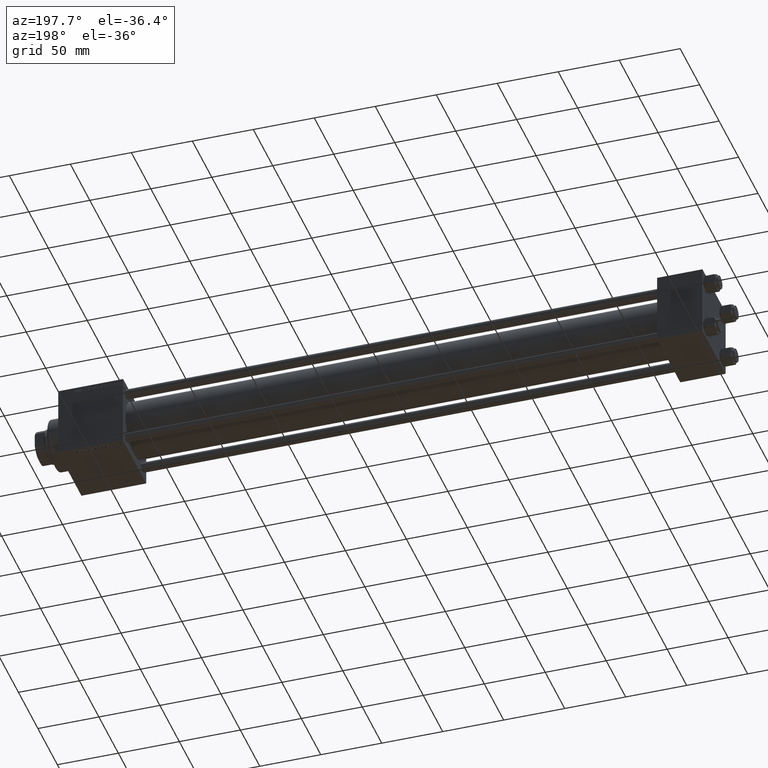
[diagram: clean part render]
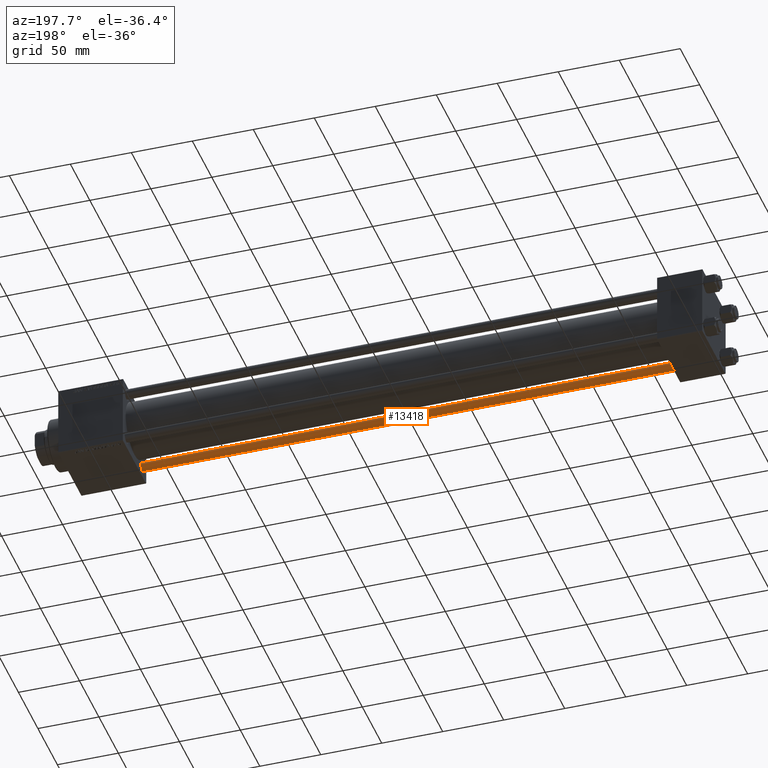
[diagram: same view with one face highlighted and labeled with its STEP entity id]
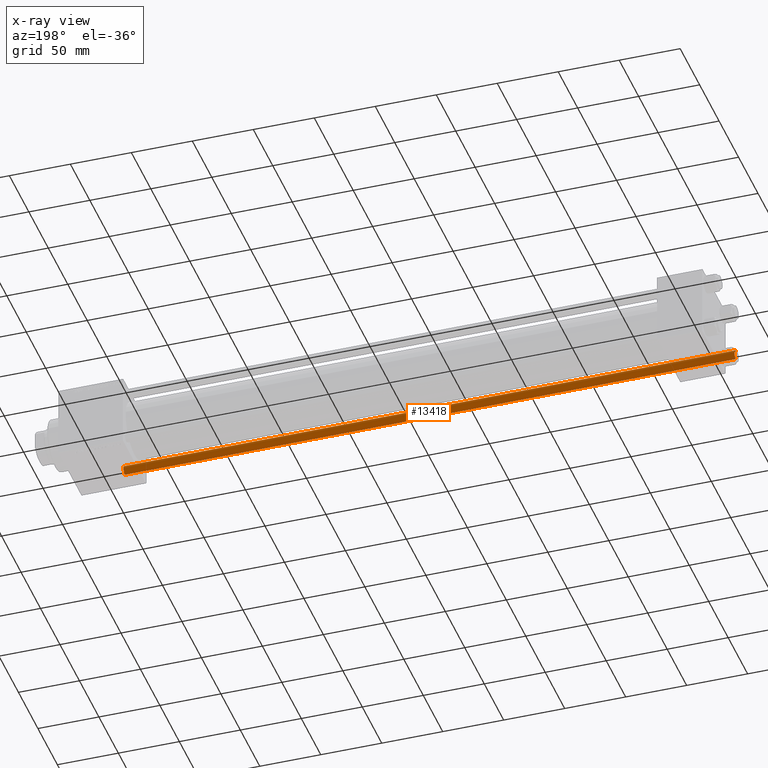
[diagram: x-ray of the same camera — body ghosted, the highlighted face saturated]
A machine part, auxiliary view. The second image highlights one B-rep face of the part: STEP entity #13418.
The next image is the same camera in x-ray: the body ghosted, the highlighted face saturated — about 0% of this face is hidden behind the body in this view.
In plain terms, the highlighted cylindrical surface (edge-blend (fillet) strip) has radius 4 mm, axis along (-1, -0, -0).
Its self-contained STEP definition (entity closure, byte-faithful):
#370 = CARTESIAN_POINT ( 'NONE',  ( 0.000000000000000000, 0.000000000000000000, 502.0000000000000000 ) ) ;
#5263 = FACE_OUTER_BOUND ( 'NONE', #20723, .T. ) ;
#6617 = AXIS2_PLACEMENT_3D ( 'NONE', #49470, #21684, #29738 ) ;
#7139 = ORIENTED_EDGE ( 'NONE', *, *, #8593, .F. ) ;
#7296 = CARTESIAN_POINT ( 'NONE',  ( -4.000000000000000000, 0.000000000000000000, 502.0000000000000000 ) ) ;
#8593 = EDGE_CURVE ( 'NONE', #11982, #50220, #14528, .T. ) ;
#10145 = AXIS2_PLACEMENT_3D ( 'NONE', #21132, #28667, #44508 ) ;
#11804 = CIRCLE ( 'NONE', #10145, 4.000000000000000000 ) ;
#11982 = VERTEX_POINT ( 'NONE', #43238 ) ;
#13418 = ADVANCED_FACE ( 'NONE', ( #5263 ), #36474, .T. ) ;
#14528 = LINE ( 'NONE', #26720, #45186 ) ;
#14945 = CIRCLE ( 'NONE', #6617, 4.000000000000000000 ) ;
#17134 = ORIENTED_EDGE ( 'NONE', *, *, #45180, .T. ) ;
#20385 = DIRECTION ( 'NONE',  ( -1.000000000000000000, 0.000000000000000000, 0.000000000000000000 ) ) ;
#20723 = EDGE_LOOP ( 'NONE', ( #7139, #49556, #17134, #31884 ) ) ;
#21132 = CARTESIAN_POINT ( 'NONE',  ( 0.000000000000000000, 0.000000000000000000, 501.4999999999999432 ) ) ;
#21684 = DIRECTION ( 'NONE',  ( -0.000000000000000000, -0.000000000000000000, 1.000000000000000000 ) ) ;
#22843 = CARTESIAN_POINT ( 'NONE',  ( -4.000000000000000000, 0.000000000000000000, 0.4999999999999449329 ) ) ;
#26538 = DIRECTION ( 'NONE',  ( -0.000000000000000000, -0.000000000000000000, -1.000000000000000000 ) ) ;
#26720 = CARTESIAN_POINT ( 'NONE',  ( 4.000000000000000000, 4.898587196589412829E-16, 502.0000000000000000 ) ) ;
#27809 = AXIS2_PLACEMENT_3D ( 'NONE', #370, #40106, #20385 ) ;
#28667 = DIRECTION ( 'NONE',  ( 0.000000000000000000, 0.000000000000000000, -1.000000000000000000 ) ) ;
#29738 = DIRECTION ( 'NONE',  ( 1.000000000000000000, 0.000000000000000000, 0.000000000000000000 ) ) ;
#30375 = DIRECTION ( 'NONE',  ( -0.000000000000000000, -0.000000000000000000, -1.000000000000000000 ) ) ;
#31884 = ORIENTED_EDGE ( 'NONE', *, *, #36927, .T. ) ;
#34259 = VERTEX_POINT ( 'NONE', #34739 ) ;
#34739 = CARTESIAN_POINT ( 'NONE',  ( -4.000000000000000000, 0.000000000000000000, 501.4999999999999432 ) ) ;
#34856 = LINE ( 'NONE', #7296, #40104 ) ;
#36474 = CYLINDRICAL_SURFACE ( 'NONE', #27809, 4.000000000000000000 ) ;
#36656 = CARTESIAN_POINT ( 'NONE',  ( 4.000000000000000000, 4.898587196589412829E-16, 0.4999999999999449329 ) ) ;
#36927 = EDGE_CURVE ( 'NONE', #45672, #50220, #14945, .T. ) ;
#40104 = VECTOR ( 'NONE', #26538, 1000.000000000000000 ) ;
#40106 = DIRECTION ( 'NONE',  ( -0.000000000000000000, -0.000000000000000000, -1.000000000000000000 ) ) ;
#42723 = EDGE_CURVE ( 'NONE', #11982, #34259, #11804, .T. ) ;
#43238 = CARTESIAN_POINT ( 'NONE',  ( 4.000000000000000000, 4.898587196589412829E-16, 501.4999999999999432 ) ) ;
#44508 = DIRECTION ( 'NONE',  ( 1.000000000000000000, 0.000000000000000000, 0.000000000000000000 ) ) ;
#45180 = EDGE_CURVE ( 'NONE', #34259, #45672, #34856, .T. ) ;
#45186 = VECTOR ( 'NONE', #30375, 1000.000000000000000 ) ;
#45672 = VERTEX_POINT ( 'NONE', #22843 ) ;
#49470 = CARTESIAN_POINT ( 'NONE',  ( 0.000000000000000000, 0.000000000000000000, 0.4999999999999449329 ) ) ;
#49556 = ORIENTED_EDGE ( 'NONE', *, *, #42723, .T. ) ;
#50220 = VERTEX_POINT ( 'NONE', #36656 ) ;